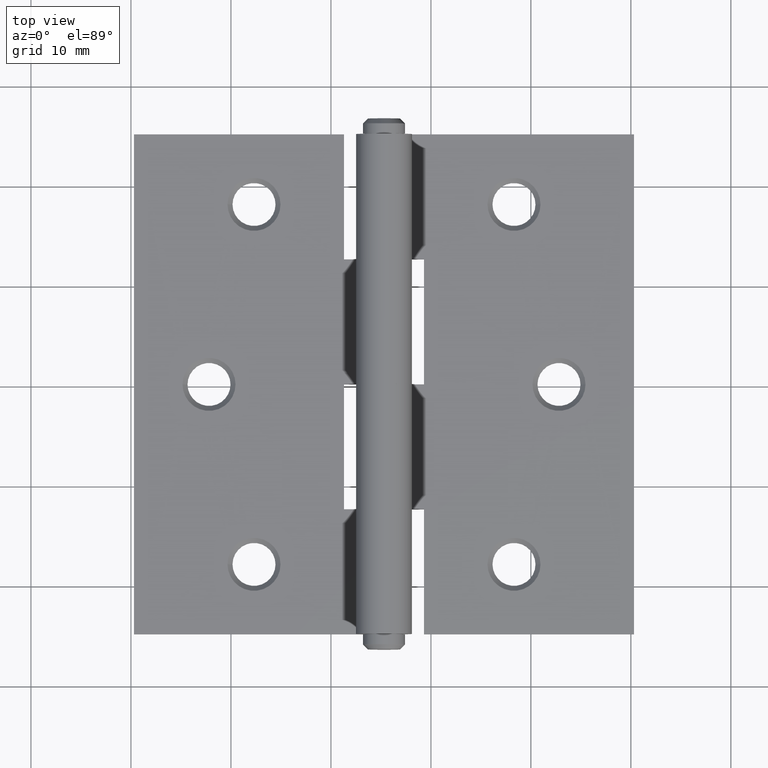
[diagram: clean part render]
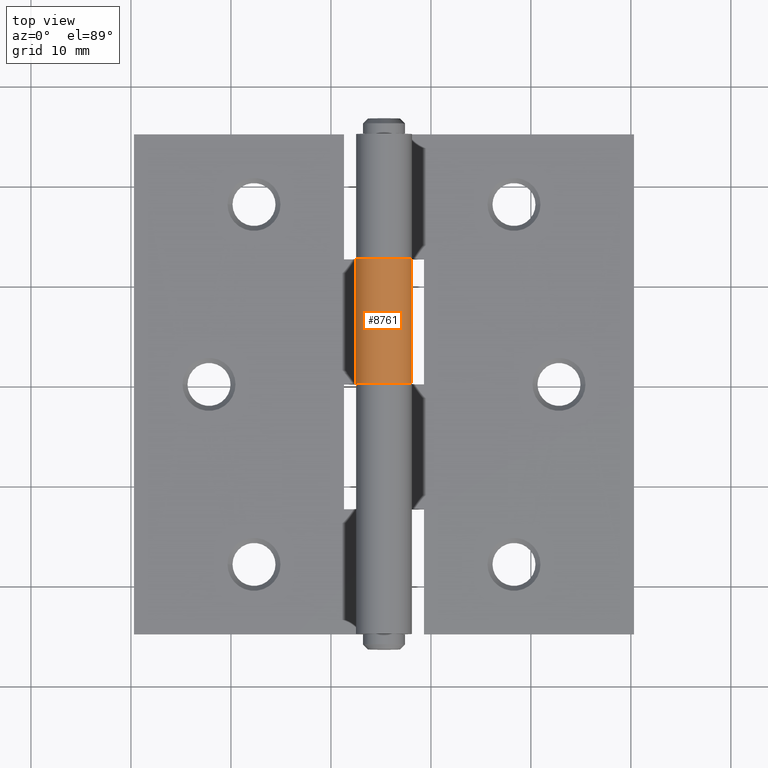
[diagram: same view with one face highlighted and labeled with its STEP entity id]
A machine part, top view. The second image highlights one B-rep face of the part: STEP entity #8761.
In plain terms, the highlighted cylindrical surface (edge-blend (fillet) strip) has radius 2.8 mm, axis along (-0, -1, -0).
Its self-contained STEP definition (entity closure, byte-faithful):
#197 = ORIENTED_EDGE ( 'NONE', *, *, #10942, .T. ) ;
#484 = CARTESIAN_POINT ( 'NONE',  ( -4.944761058952719779, 25.00000000000000000, 0.9999999999999997780 ) ) ;
#826 = DIRECTION ( 'NONE',  ( 0.000000000000000000, -1.000000000000000000, 0.000000000000000000 ) ) ;
#849 = AXIS2_PLACEMENT_3D ( 'NONE', #5065, #826, #8496 ) ;
#971 = VECTOR ( 'NONE', #10620, 1000.000000000000000 ) ;
#1239 = CARTESIAN_POINT ( 'NONE',  ( -2.800000000000000266, 25.00000000000000000, 0.000000000000000000 ) ) ;
#1722 = DIRECTION ( 'NONE',  ( 0.000000000000000000, 0.000000000000000000, 1.000000000000000000 ) ) ;
#2491 = AXIS2_PLACEMENT_3D ( 'NONE', #6061, #6862, #1722 ) ;
#2806 = ORIENTED_EDGE ( 'NONE', *, *, #6158, .T. ) ;
#2808 = DIRECTION ( 'NONE',  ( -0.000000000000000000, -1.000000000000000000, -0.000000000000000000 ) ) ;
#2811 = ORIENTED_EDGE ( 'NONE', *, *, #3844, .F. ) ;
#2988 = FACE_OUTER_BOUND ( 'NONE', #3572, .T. ) ;
#3044 = AXIS2_PLACEMENT_3D ( 'NONE', #9189, #3949, #10847 ) ;
#3063 = LINE ( 'NONE', #1239, #6558 ) ;
#3532 = CYLINDRICAL_SURFACE ( 'NONE', #3044, 2.799999999999999378 ) ;
#3572 = EDGE_LOOP ( 'NONE', ( #8585, #2811, #2806, #197 ) ) ;
#3844 = EDGE_CURVE ( 'NONE', #7862, #8055, #3063, .T. ) ;
#3949 = DIRECTION ( 'NONE',  ( -0.000000000000000000, -1.000000000000000000, -0.000000000000000000 ) ) ;
#4235 = VERTEX_POINT ( 'NONE', #10909 ) ;
#4936 = VERTEX_POINT ( 'NONE', #9396 ) ;
#5065 = CARTESIAN_POINT ( 'NONE',  ( -2.799999999999999822, 12.50000000000000355, 2.800000000000000266 ) ) ;
#5422 = CIRCLE ( 'NONE', #849, 2.799999999999999378 ) ;
#6061 = CARTESIAN_POINT ( 'NONE',  ( -2.799999999999999822, 3.469446951953614189E-15, 2.800000000000000266 ) ) ;
#6158 = EDGE_CURVE ( 'NONE', #7862, #4936, #5422, .T. ) ;
#6558 = VECTOR ( 'NONE', #2808, 1000.000000000000000 ) ;
#6862 = DIRECTION ( 'NONE',  ( 0.000000000000000000, 1.000000000000000000, -0.000000000000000000 ) ) ;
#7487 = CARTESIAN_POINT ( 'NONE',  ( -2.800000000000000266, 12.50000000000000355, 3.642919299551296377E-16 ) ) ;
#7794 = LINE ( 'NONE', #484, #971 ) ;
#7862 = VERTEX_POINT ( 'NONE', #7487 ) ;
#8055 = VERTEX_POINT ( 'NONE', #11103 ) ;
#8496 = DIRECTION ( 'NONE',  ( 0.000000000000000000, 0.000000000000000000, -1.000000000000000000 ) ) ;
#8506 = EDGE_CURVE ( 'NONE', #4235, #8055, #9457, .T. ) ;
#8585 = ORIENTED_EDGE ( 'NONE', *, *, #8506, .T. ) ;
#8761 = ADVANCED_FACE ( 'NONE', ( #2988 ), #3532, .T. ) ;
#9189 = CARTESIAN_POINT ( 'NONE',  ( -2.799999999999999822, 25.00000000000000000, 2.800000000000000266 ) ) ;
#9396 = CARTESIAN_POINT ( 'NONE',  ( -4.944761058952719779, 12.50000000000000355, 1.000000000000000000 ) ) ;
#9457 = CIRCLE ( 'NONE', #2491, 2.799999999999999378 ) ;
#10620 = DIRECTION ( 'NONE',  ( -0.000000000000000000, -1.000000000000000000, -0.000000000000000000 ) ) ;
#10847 = DIRECTION ( 'NONE',  ( 0.000000000000000000, 0.000000000000000000, -1.000000000000000000 ) ) ;
#10909 = CARTESIAN_POINT ( 'NONE',  ( -4.944761058952719779, 3.469446951953614189E-15, 1.000000000000000000 ) ) ;
#10942 = EDGE_CURVE ( 'NONE', #4936, #4235, #7794, .T. ) ;
#11103 = CARTESIAN_POINT ( 'NONE',  ( -2.800000000000000266, 3.469446951953614189E-15, 3.642919299551296377E-16 ) ) ;